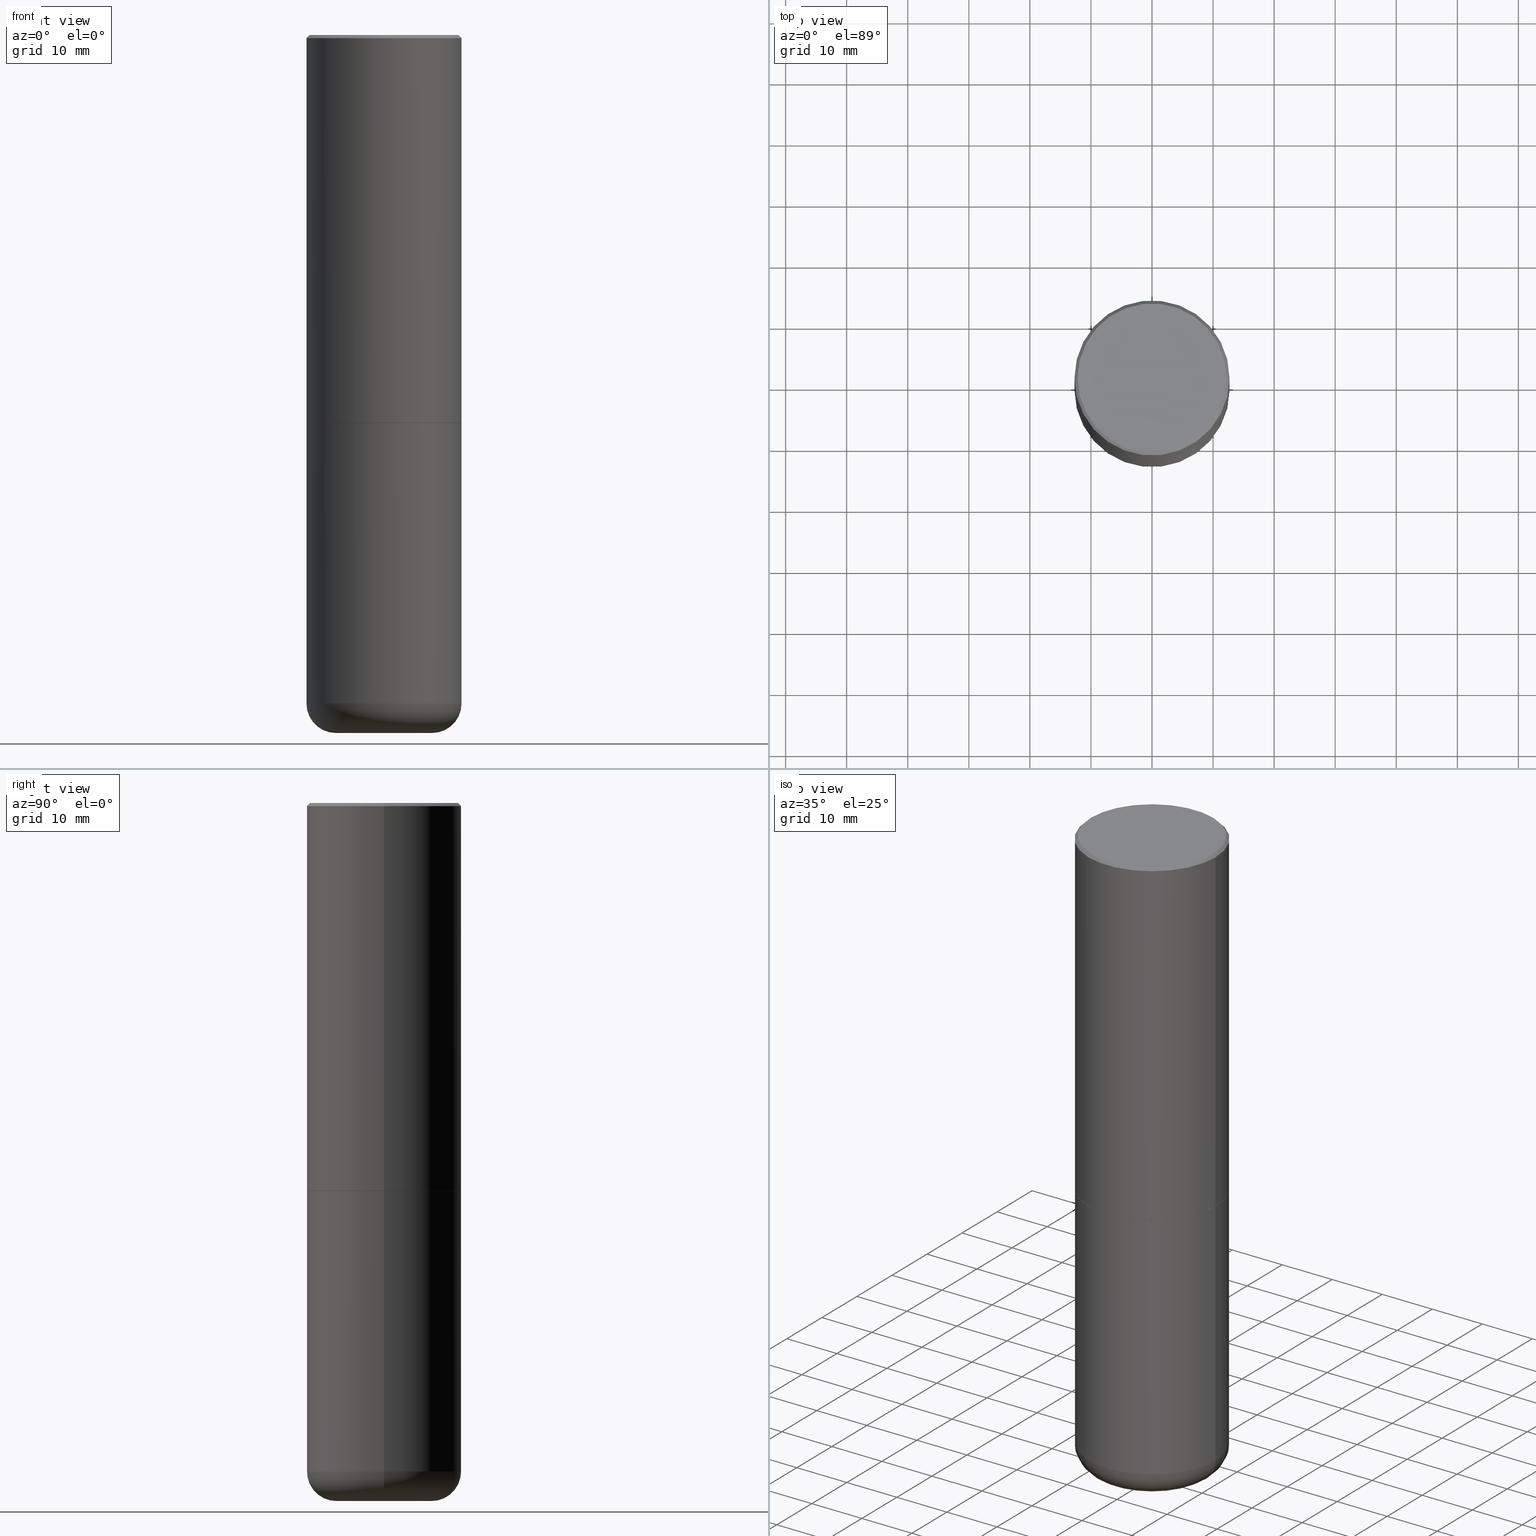
[diagram: canonical four-view strip — front | top / right | iso, engineering-drawing reading convention]
A machine part, canonical four-view strip (front | top / right | iso — engineering-drawing reading convention). The complete STEP part file that produces these views, byte-faithful:
ISO-10303-21;
HEADER;
FILE_DESCRIPTION (( 'STEP AP203' ),
    '1' );
FILE_NAME ('37149.STEP',
    '2024-03-01T21:04:27',
    ( '' ),
    ( '' ),
    'SwSTEP 2.0',
    'SolidWorks 2023',
    '' );
FILE_SCHEMA (( 'CONFIG_CONTROL_DESIGN' ));
ENDSEC;

DATA;
#1 = ORIENTED_EDGE ( 'NONE', *, *, #28, .F. ) ;
#2 = CIRCLE ( 'NONE', #234, 0.3099999999999999978 ) ;
#3 = CARTESIAN_POINT ( 'NONE',  ( -0.4989999999999999991, -5.183095095664965021E-15, -2.500000000000000000 ) ) ;
#4 = CARTESIAN_POINT ( 'NONE',  ( 0.5000000000000001110, -3.500078625662629868E-15, -0.02000000000000010797 ) ) ;
#5 = DIRECTION ( 'NONE',  ( 1.000000000000000000, -6.982962677686266711E-15, 0.000000000000000000 ) ) ;
#6 = CYLINDRICAL_SURFACE ( 'NONE', #14, 0.5000000000000000000 ) ;
#7 = CC_DESIGN_PERSON_AND_ORGANIZATION_ASSIGNMENT ( #275, #25, ( #366 ) ) ;
#8 = AXIS2_PLACEMENT_3D ( 'NONE', #254, #225, #391 ) ;
#9 = CARTESIAN_POINT ( 'NONE',  ( -0.3099999999999999978, -1.250227721777565265E-14, -4.499999999999999112 ) ) ;
#10 = AXIS2_PLACEMENT_3D ( 'NONE', #319, #246, #100 ) ;
#11 = CYLINDRICAL_SURFACE ( 'NONE', #42, 0.5000000000000001110 ) ;
#12 = PERSON ( 'UNSPECIFIED', 'UNSPECIFIED', 'UNSPECIFIED', ('UNSPECIFIED'), ('UNSPECIFIED'), ('UNSPECIFIED') ) ;
#13 = CYLINDRICAL_SURFACE ( 'NONE', #8, 0.5000000000000001110 ) ;
#14 = AXIS2_PLACEMENT_3D ( 'NONE', #359, #322, #398 ) ;
#15 = COORDINATED_UNIVERSAL_TIME_OFFSET ( 5, 0, .BEHIND. ) ;
#16 = DESIGN_CONTEXT ( 'detailed design', #202, 'design' ) ;
#17 = MANIFOLD_SOLID_BREP ( 'Body-Move/Copy2[2]', #262 ) ;
#18 = DIRECTION ( 'NONE',  ( -2.445468806185136597E-29, 3.491481338843145583E-15, 1.000000000000000000 ) ) ;
#19 = DATE_TIME_ROLE ( 'creation_date' ) ;
#20 = DIRECTION ( 'NONE',  ( -1.000000000000000000, 6.982962677686265922E-15, 0.000000000000000000 ) ) ;
#21 = DIMENSIONAL_EXPONENTS ( 1.000000000000000000, 0.000000000000000000, 0.000000000000000000, 0.000000000000000000, 0.000000000000000000, 0.000000000000000000, 0.000000000000000000 ) ;
#22 = DIRECTION ( 'NONE',  ( 2.438088387897960049E-29, -3.491481338843145188E-15, -1.000000000000000000 ) ) ;
#23 = CIRCLE ( 'NONE', #251, 0.5000000000000000000 ) ;
#24 = LOCAL_TIME ( 16, 4, 27.00000000000000000, #376 ) ;
#25 = PERSON_AND_ORGANIZATION_ROLE ( 'design_supplier' ) ;
#26 = ORIENTED_EDGE ( 'NONE', *, *, #114, .F. ) ;
#27 = CARTESIAN_POINT ( 'NONE',  ( 0.5000000000000002220, -1.221669320461215845E-14, -2.499000000000000110 ) ) ;
#28 = EDGE_CURVE ( 'NONE', #73, #344, #97, .T. ) ;
#29 = VERTEX_POINT ( 'NONE', #173 ) ;
#30 = VERTEX_POINT ( 'NONE', #333 ) ;
#31 = CALENDAR_DATE ( 2024, 1, 3 ) ;
#32 = CC_DESIGN_APPROVAL ( #60, ( #366 ) ) ;
#33 = VERTEX_POINT ( 'NONE', #299 ) ;
#34 = DATE_AND_TIME ( #384, #148 ) ;
#35 = ORIENTED_EDGE ( 'NONE', *, *, #418, .F. ) ;
#36 = CARTESIAN_POINT ( 'NONE',  ( 1.100460962783311244E-28, -1.571166602479415374E-14, -4.499999999999999112 ) ) ;
#37 = DIRECTION ( 'NONE',  ( 0.7071067811867165487, -2.468850131084027659E-15, 0.7071067811863784858 ) ) ;
#38 = DIRECTION ( 'NONE',  ( -2.445468806185136597E-29, 3.491481338843145583E-15, 1.000000000000000000 ) ) ;
#39 = ORIENTED_EDGE ( 'NONE', *, *, #271, .T. ) ;
#40 = ORIENTED_EDGE ( 'NONE', *, *, #408, .F. ) ;
#41 = LINE ( 'NONE', #3, #332 ) ;
#42 = AXIS2_PLACEMENT_3D ( 'NONE', #143, #364, #307 ) ;
#43 = AXIS2_PLACEMENT_3D ( 'NONE', #145, #232, #5 ) ;
#44 = CARTESIAN_POINT ( 'NONE',  ( 0.5000000000000001110, -3.491481338843134539E-15, 2.438088387897968457E-29 ) ) ;
#45 = FACE_OUTER_BOUND ( 'NONE', #161, .T. ) ;
#46 = CARTESIAN_POINT ( 'NONE',  ( 3.351822085289406364E-15, 0.4799999999999998157, -1.547855667941696890E-15 ) ) ;
#47 = ORIENTED_EDGE ( 'NONE', *, *, #286, .T. ) ;
#48 = CC_DESIGN_DATE_AND_TIME_ASSIGNMENT ( #340, #19, ( #181 ) ) ;
#49 = FACE_OUTER_BOUND ( 'NONE', #210, .T. ) ;
#50 = DIRECTION ( 'NONE',  ( 2.438088387897960049E-29, -3.491481338843145188E-15, -1.000000000000000000 ) ) ;
#51 = CARTESIAN_POINT ( 'NONE',  ( 4.890937612370299433E-31, -6.982962677686328587E-17, -0.02000000000000010797 ) ) ;
#52 = VECTOR ( 'NONE', #137, 39.37007874015748143 ) ;
#53 = AXIS2_PLACEMENT_3D ( 'NONE', #198, #55, #20 ) ;
#54 = DIRECTION ( 'NONE',  ( -2.445468806185136597E-29, 3.491481338843145583E-15, 1.000000000000000000 ) ) ;
#55 = DIRECTION ( 'NONE',  ( 2.445468806185136597E-29, -3.491481338843145583E-15, -1.000000000000000000 ) ) ;
#56 = EDGE_CURVE ( 'NONE', #245, #33, #329, .T. ) ;
#57 = CARTESIAN_POINT ( 'NONE',  ( 0.3099999999999999978, -1.787638445487689705E-14, -4.499999999999999112 ) ) ;
#58 = ADVANCED_FACE ( 'NONE', ( #84 ), #164, .T. ) ;
#59 = CARTESIAN_POINT ( 'NONE',  ( 6.113672015462842613E-29, -8.728703347107864943E-15, -2.500000000000000000 ) ) ;
#60 = APPROVAL ( #404, 'UNSPECIFIED' ) ;
#61 = APPROVAL_DATE_TIME ( #236, #193 ) ;
#62 = FACE_OUTER_BOUND ( 'NONE', #331, .T. ) ;
#63 = DIRECTION ( 'NONE',  ( 1.000000000000000000, -6.982962677686266711E-15, 4.878011538933552085E-29 ) ) ;
#64 = VECTOR ( 'NONE', #37, 39.37007874015748143 ) ;
#65 = CARTESIAN_POINT ( 'NONE',  ( 6.111226546656657010E-29, -8.725211865769021935E-15, -2.499000000000000110 ) ) ;
#66 = ORIENTED_EDGE ( 'NONE', *, *, #211, .F. ) ;
#67 = VERTEX_POINT ( 'NONE', #103 ) ;
#68 = EDGE_LOOP ( 'NONE', ( #175, #290, #80, #312 ) ) ;
#69 = ADVANCED_FACE ( 'NONE', ( #265 ), #13, .T. ) ;
#70 = PRODUCT_DEFINITION_SHAPE ( 'NONE', 'NONE',  #181 ) ;
#71 = AXIS2_PLACEMENT_3D ( 'NONE', #86, #167, #104 ) ;
#72 = LINE ( 'NONE', #320, #64 ) ;
#73 = VERTEX_POINT ( 'NONE', #101 ) ;
#74 = DIRECTION ( 'NONE',  ( -1.000000000000000000, 6.982962677686265922E-15, -4.876176775795935793E-29 ) ) ;
#75 = CARTESIAN_POINT ( 'NONE',  ( -0.5000000000000001110, 3.421651712066270452E-15, -0.02000000000000010797 ) ) ;
#76 = DIRECTION ( 'NONE',  ( -6.982962677686266711E-15, -1.000000000000000000, 3.491481338843145583E-15 ) ) ;
#77 = AXIS2_PLACEMENT_3D ( 'NONE', #174, #372, #63 ) ;
#78 = EDGE_CURVE ( 'NONE', #224, #67, #382, .T. ) ;
#79 = CARTESIAN_POINT ( 'NONE',  ( 1.053997055465793981E-28, -1.504828457041396030E-14, -4.310000000000000497 ) ) ;
#80 = ORIENTED_EDGE ( 'NONE', *, *, #310, .T. ) ;
#81 = DIRECTION ( 'NONE',  ( -2.445468806185136597E-29, 3.491481338843145583E-15, 1.000000000000000000 ) ) ;
#82 = DIRECTION ( 'NONE',  ( -2.445468806185136597E-29, 3.491481338843145583E-15, 1.000000000000000000 ) ) ;
#83 = DIRECTION ( 'NONE',  ( -2.445468806185136597E-29, 3.491481338843145583E-15, 1.000000000000000000 ) ) ;
#84 = FACE_OUTER_BOUND ( 'NONE', #183, .T. ) ;
#85 = CC_DESIGN_SECURITY_CLASSIFICATION ( #88, ( #366 ) ) ;
#86 = CARTESIAN_POINT ( 'NONE',  ( 0.000000000000000000, 0.000000000000000000, 0.000000000000000000 ) ) ;
#87 = CC_DESIGN_PERSON_AND_ORGANIZATION_ASSIGNMENT ( #144, #399, ( #217 ) ) ;
#88 = SECURITY_CLASSIFICATION ( '', '', #411 ) ;
#89 = EDGE_CURVE ( 'NONE', #289, #392, #209, .T. ) ;
#90 = DIRECTION ( 'NONE',  ( -2.445468806185136877E-29, 3.491481338843145188E-15, 1.000000000000000000 ) ) ;
#91 = VECTOR ( 'NONE', #263, 39.37007874015748143 ) ;
#92 = CONICAL_SURFACE ( 'NONE', #53, 0.5000000000000001110, 0.7853981633974458365 ) ;
#93 = ORIENTED_EDGE ( 'NONE', *, *, #271, .F. ) ;
#94 = PERSON_AND_ORGANIZATION ( #12, #293 ) ;
#95 = ORIENTED_EDGE ( 'NONE', *, *, #146, .F. ) ;
#96 = DIRECTION ( 'NONE',  ( 1.000000000000000000, -6.982962677686273810E-15, 0.000000000000000000 ) ) ;
#97 = CIRCLE ( 'NONE', #324, 0.5000000000000001110 ) ;
#98 =( GEOMETRIC_REPRESENTATION_CONTEXT ( 3 ) GLOBAL_UNCERTAINTY_ASSIGNED_CONTEXT ( ( #147 ) ) GLOBAL_UNIT_ASSIGNED_CONTEXT ( ( #354, #121, #361 ) ) REPRESENTATION_CONTEXT ( 'NONE', 'WORKASPACE' ) );
#99 = ORIENTED_EDGE ( 'NONE', *, *, #298, .F. ) ;
#100 = DIRECTION ( 'NONE',  ( 1.000000000000000000, -6.982962677686269077E-15, 0.000000000000000000 ) ) ;
#101 = CARTESIAN_POINT ( 'NONE',  ( 0.5000000000000001110, -3.500078625662629868E-15, -0.02000000000000010797 ) ) ;
#102 = LINE ( 'NONE', #44, #284 ) ;
#103 = CARTESIAN_POINT ( 'NONE',  ( -0.4999999999999998335, -1.149557089161345937E-14, -4.310000000000000497 ) ) ;
#104 = DIRECTION ( 'NONE',  ( 1.000000000000000000, 0.000000000000000000, 0.000000000000000000 ) ) ;
#105 = ADVANCED_FACE ( 'NONE', ( #109 ), #269, .T. ) ;
#106 = DIRECTION ( 'NONE',  ( 1.000000000000000000, -6.982962677686266711E-15, 4.876176775795935793E-29 ) ) ;
#107 = ORIENTED_EDGE ( 'NONE', *, *, #330, .F. ) ;
#108 = DIRECTION ( 'NONE',  ( -2.438088387897960049E-29, 3.491481338843145188E-15, 1.000000000000000000 ) ) ;
#109 = FACE_OUTER_BOUND ( 'NONE', #306, .T. ) ;
#110 = CARTESIAN_POINT ( 'NONE',  ( 0.4799999999999998157, -3.396558832296481310E-15, 2.561107494060482809E-16 ) ) ;
#111 = ADVANCED_FACE ( 'NONE', ( #45 ), #6, .T. ) ;
#112 = ORIENTED_EDGE ( 'NONE', *, *, #403, .F. ) ;
#113 = VECTOR ( 'NONE', #266, 39.37007874015748143 ) ;
#114 = EDGE_CURVE ( 'NONE', #387, #289, #41, .T. ) ;
#115 = APPROVAL_ROLE ( '' ) ;
#116 = FACE_OUTER_BOUND ( 'NONE', #371, .T. ) ;
#117 = AXIS2_PLACEMENT_3D ( 'NONE', #46, #50, #296 ) ;
#118 = EDGE_CURVE ( 'NONE', #311, #73, #166, .T. ) ;
#119 = LINE ( 'NONE', #342, #325 ) ;
#120 = CIRCLE ( 'NONE', #141, 0.5000000000000000000 ) ;
#121 =( NAMED_UNIT ( * ) PLANE_ANGLE_UNIT ( ) SI_UNIT ( $, .RADIAN. ) );
#122 = CARTESIAN_POINT ( 'NONE',  ( 4.890937612370299433E-31, -6.982962677686328587E-17, -0.02000000000000010797 ) ) ;
#123 = ORIENTED_EDGE ( 'NONE', *, *, #114, .T. ) ;
#124 = CARTESIAN_POINT ( 'NONE',  ( -0.5000000000000001110, 3.552713678800501718E-15, -2.459467545127453732E-29 ) ) ;
#125 = ORIENTED_EDGE ( 'NONE', *, *, #418, .T. ) ;
#126 = DATE_AND_TIME ( #31, #165 ) ;
#127 = ORIENTED_EDGE ( 'NONE', *, *, #412, .F. ) ;
#128 = ORIENTED_EDGE ( 'NONE', *, *, #56, .T. ) ;
#129 = DIRECTION ( 'NONE',  ( 1.000000000000000000, -6.982962677686263555E-15, 0.000000000000000000 ) ) ;
#130 = DIRECTION ( 'NONE',  ( -2.445468806185136877E-29, 3.491481338843145188E-15, 1.000000000000000000 ) ) ;
#131 = AXIS2_PLACEMENT_3D ( 'NONE', #268, #368, #377 ) ;
#132 = CIRCLE ( 'NONE', #235, 0.4989999999999999991 ) ;
#133 = ORIENTED_EDGE ( 'NONE', *, *, #78, .F. ) ;
#134 = EDGE_LOOP ( 'NONE', ( #358, #222 ) ) ;
#135 = ADVANCED_FACE ( 'NONE', ( #260 ), #393, .F. ) ;
#136 = VERTEX_POINT ( 'NONE', #231 ) ;
#137 = DIRECTION ( 'NONE',  ( 0.7071067811865457964, -7.319954787623249734E-15, -0.7071067811865492381 ) ) ;
#138 = FACE_OUTER_BOUND ( 'NONE', #345, .T. ) ;
#139 = CARTESIAN_POINT ( 'NONE',  ( 4.890937612370299433E-31, -6.982962677686328587E-17, -0.02000000000000010797 ) ) ;
#140 = DIRECTION ( 'NONE',  ( 1.000000000000000000, -6.982962677686265922E-15, 0.000000000000000000 ) ) ;
#141 = AXIS2_PLACEMENT_3D ( 'NONE', #79, #82, #292 ) ;
#142 = LINE ( 'NONE', #397, #113 ) ;
#143 = CARTESIAN_POINT ( 'NONE',  ( 0.000000000000000000, 0.000000000000000000, 0.000000000000000000 ) ) ;
#144 = PERSON_AND_ORGANIZATION ( #12, #293 ) ;
#145 = CARTESIAN_POINT ( 'NONE',  ( 6.113672015462842613E-29, -8.728703347107864943E-15, -2.500000000000000000 ) ) ;
#146 = EDGE_CURVE ( 'NONE', #245, #67, #395, .T. ) ;
#147 = UNCERTAINTY_MEASURE_WITH_UNIT (LENGTH_MEASURE( 1.000000000000000082E-05 ), #354, 'distance_accuracy_value', 'NONE');
#148 = LOCAL_TIME ( 16, 4, 27.00000000000000000, #243 ) ;
#149 = FACE_OUTER_BOUND ( 'NONE', #249, .T. ) ;
#150 = DIRECTION ( 'NONE',  ( -1.000000000000000000, 6.982962677686265922E-15, -4.876176775795935793E-29 ) ) ;
#151 = AXIS2_PLACEMENT_3D ( 'NONE', #169, #108, #362 ) ;
#152 = AXIS2_PLACEMENT_3D ( 'NONE', #36, #212, #129 ) ;
#153 = CALENDAR_DATE ( 2024, 1, 3 ) ;
#154 = PERSON_AND_ORGANIZATION_ROLE ( 'creator' ) ;
#155 = ORIENTED_EDGE ( 'NONE', *, *, #56, .F. ) ;
#156 = CIRCLE ( 'NONE', #10, 0.5000000000000000000 ) ;
#157 = ADVANCED_FACE ( 'NONE', ( #194 ), #218, .T. ) ;
#158 = ORIENTED_EDGE ( 'NONE', *, *, #146, .T. ) ;
#159 = DATE_TIME_ROLE ( 'classification_date' ) ;
#160 = ORIENTED_EDGE ( 'NONE', *, *, #286, .F. ) ;
#161 = EDGE_LOOP ( 'NONE', ( #158, #297, #66, #155 ) ) ;
#162 = ADVANCED_FACE ( 'NONE', ( #49 ), #11, .T. ) ;
#163 = AXIS2_PLACEMENT_3D ( 'NONE', #230, #38, #274 ) ;
#164 = PLANE ( 'NONE',  #339 ) ;
#165 = LOCAL_TIME ( 16, 4, 27.00000000000000000, #182 ) ;
#166 = LINE ( 'NONE', #4, #52 ) ;
#167 = DIRECTION ( 'NONE',  ( 0.000000000000000000, 0.000000000000000000, 1.000000000000000000 ) ) ;
#168 = DIRECTION ( 'NONE',  ( -2.445468806185136877E-29, 3.491481338843145188E-15, 1.000000000000000000 ) ) ;
#169 = CARTESIAN_POINT ( 'NONE',  ( 6.113672015462842613E-29, -8.728703347107864943E-15, -2.500000000000000000 ) ) ;
#170 = DIRECTION ( 'NONE',  ( 2.445468806185136597E-29, -3.491481338843145583E-15, -1.000000000000000000 ) ) ;
#171 = AXIS2_PLACEMENT_3D ( 'NONE', #326, #83, #188 ) ;
#172 = ORIENTED_EDGE ( 'NONE', *, *, #118, .T. ) ;
#173 = CARTESIAN_POINT ( 'NONE',  ( -0.5000000000000000000, -8.335780279960410113E-15, -2.500000000000000000 ) ) ;
#174 = CARTESIAN_POINT ( 'NONE',  ( -6.263108486011318684E-45, 8.942059022282684186E-31, 2.561107494060246644E-16 ) ) ;
#175 = ORIENTED_EDGE ( 'NONE', *, *, #118, .F. ) ;
#176 = APPROVAL_STATUS ( 'not_yet_approved' ) ;
#177 = CIRCLE ( 'NONE', #413, 0.5000000000000001110 ) ;
#178 = VECTOR ( 'NONE', #130, 39.37007874015748143 ) ;
#179 = CIRCLE ( 'NONE', #348, 0.1899999999999996692 ) ;
#180 = ORIENTED_EDGE ( 'NONE', *, *, #211, .T. ) ;
#181 = PRODUCT_DEFINITION ( 'UNKNOWN', '', #366, #16 ) ;
#182 = COORDINATED_UNIVERSAL_TIME_OFFSET ( 5, 0, .BEHIND. ) ;
#183 = EDGE_LOOP ( 'NONE', ( #127, #216 ) ) ;
#184 = AXIS2_PLACEMENT_3D ( 'NONE', #323, #288, #106 ) ;
#185 = APPROVAL_PERSON_ORGANIZATION ( #270, #60, #115 ) ;
#186 = ORIENTED_EDGE ( 'NONE', *, *, #233, .T. ) ;
#187 = EDGE_LOOP ( 'NONE', ( #219, #35 ) ) ;
#188 = DIRECTION ( 'NONE',  ( 1.000000000000000000, -6.982962677686267499E-15, 4.883557194083114022E-29 ) ) ;
#189 = DIRECTION ( 'NONE',  ( -0.7071067811867165487, 7.493145998870964739E-15, 0.7071067811863784858 ) ) ;
#190 = TOROIDAL_SURFACE ( 'NONE', #309, 0.3099999999999999978, 0.1899999999999996692 ) ;
#191 = FACE_OUTER_BOUND ( 'NONE', #134, .T. ) ;
#192 = DIRECTION ( 'NONE',  ( 1.000000000000000000, -6.982962677686265922E-15, 0.000000000000000000 ) ) ;
#193 = APPROVAL ( #176, 'UNSPECIFIED' ) ;
#194 = FACE_OUTER_BOUND ( 'NONE', #68, .T. ) ;
#195 = FACE_OUTER_BOUND ( 'NONE', #414, .T. ) ;
#196 = ORIENTED_EDGE ( 'NONE', *, *, #338, .F. ) ;
#197 = AXIS2_PLACEMENT_3D ( 'NONE', #59, #18, #237 ) ;
#198 = CARTESIAN_POINT ( 'NONE',  ( 4.890937612370299433E-31, -6.982962677686328587E-17, -0.02000000000000010797 ) ) ;
#199 = LOCAL_TIME ( 16, 4, 27.00000000000000000, #203 ) ;
#200 = DIRECTION ( 'NONE',  ( -2.445468806185136597E-29, 3.491481338843145583E-15, 1.000000000000000000 ) ) ;
#201 = CARTESIAN_POINT ( 'NONE',  ( -0.4989999999999999991, -5.177796641316741831E-15, -2.500000000000000000 ) ) ;
#202 = APPLICATION_CONTEXT ( 'configuration controlled 3d designs of mechanical parts and assemblies' ) ;
#203 = COORDINATED_UNIVERSAL_TIME_OFFSET ( 5, 0, .BEHIND. ) ;
#204 = LOCAL_TIME ( 16, 4, 27.00000000000000000, #15 ) ;
#205 = CARTESIAN_POINT ( 'NONE',  ( 1.053997055465793981E-28, -1.504828457041396030E-14, -4.310000000000000497 ) ) ;
#206 = CALENDAR_DATE ( 2024, 1, 3 ) ;
#207 = ADVANCED_FACE ( 'NONE', ( #149 ), #373, .T. ) ;
#208 = PERSON_AND_ORGANIZATION ( #12, #293 ) ;
#209 = CIRCLE ( 'NONE', #347, 0.5000000000000002220 ) ;
#210 = EDGE_LOOP ( 'NONE', ( #276, #314, #47, #196 ) ) ;
#211 = EDGE_CURVE ( 'NONE', #33, #29, #23, .T. ) ;
#212 = DIRECTION ( 'NONE',  ( -2.445468806185136597E-29, 3.491481338843145583E-15, 1.000000000000000000 ) ) ;
#213 = APPROVAL_ROLE ( '' ) ;
#214 = CARTESIAN_POINT ( 'NONE',  ( 0.3099999999999999978, -1.721300300049670045E-14, -4.310000000000000497 ) ) ;
#215 = EDGE_CURVE ( 'NONE', #30, #311, #308, .T. ) ;
#216 = ORIENTED_EDGE ( 'NONE', *, *, #267, .F. ) ;
#217 = PRODUCT ( '37149', '37149', '', ( #295 ) ) ;
#218 = CONICAL_SURFACE ( 'NONE', #242, 0.5000000000000001110, 0.7853981633974458365 ) ;
#219 = ORIENTED_EDGE ( 'NONE', *, *, #233, .F. ) ;
#220 =( LENGTH_UNIT ( ) NAMED_UNIT ( * ) SI_UNIT ( $, .METRE. ) );
#221 = DIRECTION ( 'NONE',  ( -1.000000000000000000, 7.105427357600999492E-15, 0.000000000000000000 ) ) ;
#222 = ORIENTED_EDGE ( 'NONE', *, *, #330, .T. ) ;
#223 = CARTESIAN_POINT ( 'NONE',  ( 6.113672015462842613E-29, -8.728703347107864943E-15, -2.500000000000000000 ) ) ;
#224 = VERTEX_POINT ( 'NONE', #9 ) ;
#225 = DIRECTION ( 'NONE',  ( -2.445468806185136597E-29, 3.491481338843145583E-15, 1.000000000000000000 ) ) ;
#226 = CARTESIAN_POINT ( 'NONE',  ( 1.053997055465793981E-28, -1.504828457041396030E-14, -4.310000000000000497 ) ) ;
#227 = CC_DESIGN_APPROVAL ( #239, ( #88 ) ) ;
#228 = CC_DESIGN_PERSON_AND_ORGANIZATION_ASSIGNMENT ( #208, #154, ( #366 ) ) ;
#229 = DIRECTION ( 'NONE',  ( -2.445468806185136597E-29, 3.491481338843145583E-15, 1.000000000000000000 ) ) ;
#230 = CARTESIAN_POINT ( 'NONE',  ( -6.263108486011318684E-45, 8.942059022282684186E-31, 2.561107494060246644E-16 ) ) ;
#231 = CARTESIAN_POINT ( 'NONE',  ( 0.4989999999999999991, -1.221320172327331228E-14, -2.500000000000000000 ) ) ;
#232 = DIRECTION ( 'NONE',  ( -2.445468806185136597E-29, 3.491481338843145583E-15, 1.000000000000000000 ) ) ;
#233 = EDGE_CURVE ( 'NONE', #136, #387, #301, .T. ) ;
#234 = AXIS2_PLACEMENT_3D ( 'NONE', #247, #349, #252 ) ;
#235 = AXIS2_PLACEMENT_3D ( 'NONE', #223, #417, #250 ) ;
#236 = DATE_AND_TIME ( #153, #199 ) ;
#237 = DIRECTION ( 'NONE',  ( 1.000000000000000000, -6.982962677686266711E-15, 0.000000000000000000 ) ) ;
#238 = CIRCLE ( 'NONE', #152, 0.3099999999999999978 ) ;
#239 = APPROVAL ( #350, 'UNSPECIFIED' ) ;
#240 = ADVANCED_FACE ( 'NONE', ( #62 ), #272, .F. ) ;
#241 = DIRECTION ( 'NONE',  ( -2.445468806185136597E-29, 3.491481338843145583E-15, 1.000000000000000000 ) ) ;
#242 = AXIS2_PLACEMENT_3D ( 'NONE', #51, #170, #294 ) ;
#243 = COORDINATED_UNIVERSAL_TIME_OFFSET ( 5, 0, .BEHIND. ) ;
#244 = VERTEX_POINT ( 'NONE', #57 ) ;
#245 = VERTEX_POINT ( 'NONE', #282 ) ;
#246 = DIRECTION ( 'NONE',  ( -2.445468806185136597E-29, 3.491481338843145583E-15, 1.000000000000000000 ) ) ;
#247 = CARTESIAN_POINT ( 'NONE',  ( 1.100460962783311244E-28, -1.571166602479415374E-14, -4.499999999999999112 ) ) ;
#248 = APPROVAL_DATE_TIME ( #126, #239 ) ;
#249 = EDGE_LOOP ( 'NONE', ( #186, #123, #112, #93 ) ) ;
#250 = DIRECTION ( 'NONE',  ( 1.000000000000000000, -6.982962677686266711E-15, 0.000000000000000000 ) ) ;
#251 = AXIS2_PLACEMENT_3D ( 'NONE', #374, #200, #336 ) ;
#252 = DIRECTION ( 'NONE',  ( 1.000000000000000000, -6.982962677686263555E-15, 0.000000000000000000 ) ) ;
#253 = APPROVAL_PERSON_ORGANIZATION ( #94, #239, #213 ) ;
#254 = CARTESIAN_POINT ( 'NONE',  ( 0.000000000000000000, 0.000000000000000000, 0.000000000000000000 ) ) ;
#255 = ORIENTED_EDGE ( 'NONE', *, *, #408, .T. ) ;
#256 = LENGTH_MEASURE_WITH_UNIT ( LENGTH_MEASURE( 0.02539999999999999897 ), #220 );
#257 = EDGE_LOOP ( 'NONE', ( #321, #313, #128, #318 ) ) ;
#258 = DIRECTION ( 'NONE',  ( 1.000000000000000000, -6.982962677686269866E-15, 0.000000000000000000 ) ) ;
#259 = FACE_OUTER_BOUND ( 'NONE', #257, .T. ) ;
#260 = FACE_OUTER_BOUND ( 'NONE', #187, .T. ) ;
#261 = EDGE_CURVE ( 'NONE', #289, #344, #415, .T. ) ;
#262 = CLOSED_SHELL ( 'NONE', ( #207, #69, #386, #157, #162, #378, #135, #370 ) ) ;
#263 = DIRECTION ( 'NONE',  ( -2.445468806185136877E-29, 3.491481338843145188E-15, 1.000000000000000000 ) ) ;
#264 = CIRCLE ( 'NONE', #273, 0.5000000000000002220 ) ;
#265 = FACE_OUTER_BOUND ( 'NONE', #416, .T. ) ;
#266 = DIRECTION ( 'NONE',  ( -0.7071067811865457964, 2.468850131082238917E-15, -0.7071067811865492381 ) ) ;
#267 = EDGE_CURVE ( 'NONE', #224, #244, #2, .T. ) ;
#268 = CARTESIAN_POINT ( 'NONE',  ( 6.113672015462842613E-29, -8.728703347107864943E-15, -2.500000000000000000 ) ) ;
#269 = TOROIDAL_SURFACE ( 'NONE', #171, 0.3099999999999999978, 0.1899999999999996692 ) ;
#270 = PERSON_AND_ORGANIZATION ( #12, #293 ) ;
#271 = EDGE_CURVE ( 'NONE', #136, #392, #72, .T. ) ;
#272 = PLANE ( 'NONE',  #365 ) ;
#273 = AXIS2_PLACEMENT_3D ( 'NONE', #65, #241, #383 ) ;
#274 = DIRECTION ( 'NONE',  ( 1.000000000000000000, -6.982962677686266711E-15, 4.878011538933552085E-29 ) ) ;
#275 = PERSON_AND_ORGANIZATION ( #12, #293 ) ;
#276 = ORIENTED_EDGE ( 'NONE', *, *, #261, .F. ) ;
#277 = ORIENTED_EDGE ( 'NONE', *, *, #267, .T. ) ;
#278 = APPROVAL_PERSON_ORGANIZATION ( #409, #193, #300 ) ;
#279 = ORIENTED_EDGE ( 'NONE', *, *, #412, .T. ) ;
#280 = MANIFOLD_SOLID_BREP ( 'Body-Move/Copy2[1]', #315 ) ;
#281 = PRODUCT_RELATED_PRODUCT_CATEGORY ( 'detail', '', ( #217 ) ) ;
#282 = CARTESIAN_POINT ( 'NONE',  ( 0.4999999999999998335, -1.853976590925709365E-14, -4.310000000000000497 ) ) ;
#283 = ORIENTED_EDGE ( 'NONE', *, *, #403, .T. ) ;
#284 = VECTOR ( 'NONE', #168, 39.37007874015748143 ) ;
#285 = DIRECTION ( 'NONE',  ( 2.438088387897960049E-29, -3.491481338843145188E-15, -1.000000000000000000 ) ) ;
#286 = EDGE_CURVE ( 'NONE', #392, #73, #102, .T. ) ;
#287 = CARTESIAN_POINT ( 'NONE',  ( -0.3099999999999999978, -1.284560208955764776E-14, -4.310000000000000497 ) ) ;
#288 = DIRECTION ( 'NONE',  ( -2.445468806185136597E-29, 3.491481338843145583E-15, 1.000000000000000000 ) ) ;
#289 = VERTEX_POINT ( 'NONE', #357 ) ;
#290 = ORIENTED_EDGE ( 'NONE', *, *, #215, .F. ) ;
#291 = CARTESIAN_POINT ( 'NONE',  ( 0.5000000000000000000, -3.491481338843133355E-15, 2.438088387897967896E-29 ) ) ;
#292 = DIRECTION ( 'NONE',  ( 1.000000000000000000, -6.982962677686270655E-15, 0.000000000000000000 ) ) ;
#293 = ORGANIZATION ( 'UNSPECIFIED', 'UNSPECIFIED', '' ) ;
#294 = DIRECTION ( 'NONE',  ( -1.000000000000000000, 6.982962677686265922E-15, 0.000000000000000000 ) ) ;
#295 = MECHANICAL_CONTEXT ( 'NONE', #337, 'mechanical' ) ;
#296 = DIRECTION ( 'NONE',  ( -1.000000000000000000, 6.982962677686265922E-15, -4.876176775795935793E-29 ) ) ;
#297 = ORIENTED_EDGE ( 'NONE', *, *, #400, .T. ) ;
#298 = EDGE_CURVE ( 'NONE', #67, #245, #120, .T. ) ;
#299 = CARTESIAN_POINT ( 'NONE',  ( 0.5000000000000000000, -1.222018468595099830E-14, -2.500000000000000000 ) ) ;
#300 = APPROVAL_ROLE ( '' ) ;
#301 = CIRCLE ( 'NONE', #131, 0.4989999999999999991 ) ;
#302 = PERSON_AND_ORGANIZATION_ROLE ( 'creator' ) ;
#303 = CC_DESIGN_APPROVAL ( #193, ( #181 ) ) ;
#304 = ORIENTED_EDGE ( 'NONE', *, *, #261, .T. ) ;
#305 = DATE_AND_TIME ( #206, #24 ) ;
#306 = EDGE_LOOP ( 'NONE', ( #279, #389, #95, #40 ) ) ;
#307 = DIRECTION ( 'NONE',  ( 1.000000000000000000, -6.982962677686267499E-15, 4.876176775795935793E-29 ) ) ;
#308 = CIRCLE ( 'NONE', #77, 0.4799999999999998157 ) ;
#309 = AXIS2_PLACEMENT_3D ( 'NONE', #205, #341, #410 ) ;
#310 = EDGE_CURVE ( 'NONE', #30, #344, #142, .T. ) ;
#311 = VERTEX_POINT ( 'NONE', #110 ) ;
#312 = ORIENTED_EDGE ( 'NONE', *, *, #338, .T. ) ;
#313 = ORIENTED_EDGE ( 'NONE', *, *, #298, .T. ) ;
#314 = ORIENTED_EDGE ( 'NONE', *, *, #89, .T. ) ;
#315 = CLOSED_SHELL ( 'NONE', ( #111, #105, #240, #353, #390, #58 ) ) ;
#316 = PERSON_AND_ORGANIZATION ( #12, #293 ) ;
#317 = CC_DESIGN_DATE_AND_TIME_ASSIGNMENT ( #34, #159, ( #88 ) ) ;
#318 = ORIENTED_EDGE ( 'NONE', *, *, #405, .F. ) ;
#319 = CARTESIAN_POINT ( 'NONE',  ( 6.113672015462842613E-29, -8.728703347107864943E-15, -2.500000000000000000 ) ) ;
#320 = CARTESIAN_POINT ( 'NONE',  ( 0.4989999999999999991, -1.221320172327331228E-14, -2.500000000000000000 ) ) ;
#321 = ORIENTED_EDGE ( 'NONE', *, *, #400, .F. ) ;
#322 = DIRECTION ( 'NONE',  ( -2.445468806185136597E-29, 3.491481338843145583E-15, 1.000000000000000000 ) ) ;
#323 = CARTESIAN_POINT ( 'NONE',  ( 0.000000000000000000, 0.000000000000000000, 0.000000000000000000 ) ) ;
#324 = AXIS2_PLACEMENT_3D ( 'NONE', #139, #54, #192 ) ;
#325 = VECTOR ( 'NONE', #90, 39.37007874015748143 ) ;
#326 = CARTESIAN_POINT ( 'NONE',  ( 1.053997055465793981E-28, -1.504828457041396030E-14, -4.310000000000000497 ) ) ;
#327 = PLANE ( 'NONE',  #117 ) ;
#328 = DIRECTION ( 'NONE',  ( 1.000000000000000000, -6.982962677686270655E-15, 0.000000000000000000 ) ) ;
#329 = LINE ( 'NONE', #291, #91 ) ;
#330 = EDGE_CURVE ( 'NONE', #311, #30, #343, .T. ) ;
#331 = EDGE_LOOP ( 'NONE', ( #180, #335 ) ) ;
#332 = VECTOR ( 'NONE', #189, 39.37007874015748143 ) ;
#333 = CARTESIAN_POINT ( 'NONE',  ( -0.4799999999999998157, 3.386736898677839197E-15, 2.561107494060010972E-16 ) ) ;
#334 = ADVANCED_BREP_SHAPE_REPRESENTATION ( '37149', ( #280, #17, #71 ), #98 ) ;
#335 = ORIENTED_EDGE ( 'NONE', *, *, #405, .T. ) ;
#336 = DIRECTION ( 'NONE',  ( 1.000000000000000000, -6.982962677686269077E-15, 0.000000000000000000 ) ) ;
#337 = APPLICATION_CONTEXT ( 'configuration controlled 3d designs of mechanical parts and assemblies' ) ;
#338 = EDGE_CURVE ( 'NONE', #344, #73, #177, .T. ) ;
#339 = AXIS2_PLACEMENT_3D ( 'NONE', #352, #285, #74 ) ;
#340 = DATE_AND_TIME ( #407, #204 ) ;
#341 = DIRECTION ( 'NONE',  ( -2.445468806185136597E-29, 3.491481338843145583E-15, 1.000000000000000000 ) ) ;
#342 = CARTESIAN_POINT ( 'NONE',  ( -0.5000000000000000000, 3.552713678800500929E-15, -2.459467545127452891E-29 ) ) ;
#343 = CIRCLE ( 'NONE', #163, 0.4799999999999998157 ) ;
#344 = VERTEX_POINT ( 'NONE', #75 ) ;
#345 = EDGE_LOOP ( 'NONE', ( #107, #172, #355, #385 ) ) ;
#346 = CC_DESIGN_PERSON_AND_ORGANIZATION_ASSIGNMENT ( #316, #381, ( #88 ) ) ;
#347 = AXIS2_PLACEMENT_3D ( 'NONE', #356, #229, #258 ) ;
#348 = AXIS2_PLACEMENT_3D ( 'NONE', #214, #76, #96 ) ;
#349 = DIRECTION ( 'NONE',  ( -2.445468806185136597E-29, 3.491481338843145583E-15, 1.000000000000000000 ) ) ;
#350 = APPROVAL_STATUS ( 'not_yet_approved' ) ;
#351 = ORIENTED_EDGE ( 'NONE', *, *, #89, .F. ) ;
#352 = CARTESIAN_POINT ( 'NONE',  ( 1.654291715131140011E-28, -7.780494430284999994E-15, -4.499999999999999112 ) ) ;
#353 = ADVANCED_FACE ( 'NONE', ( #259 ), #394, .T. ) ;
#354 =( CONVERSION_BASED_UNIT ( 'INCH', #256 ) LENGTH_UNIT ( ) NAMED_UNIT ( #21 ) );
#355 = ORIENTED_EDGE ( 'NONE', *, *, #28, .T. ) ;
#356 = CARTESIAN_POINT ( 'NONE',  ( 6.111226546656657010E-29, -8.725211865769021935E-15, -2.499000000000000110 ) ) ;
#357 = CARTESIAN_POINT ( 'NONE',  ( -0.5000000000000002220, -8.448070674724393209E-16, -2.499000000000000110 ) ) ;
#358 = ORIENTED_EDGE ( 'NONE', *, *, #215, .T. ) ;
#359 = CARTESIAN_POINT ( 'NONE',  ( 0.000000000000000000, 0.000000000000000000, 0.000000000000000000 ) ) ;
#360 = DIRECTION ( 'NONE',  ( -2.445468806185136597E-29, 3.491481338843145583E-15, 1.000000000000000000 ) ) ;
#361 =( NAMED_UNIT ( * ) SI_UNIT ( $, .STERADIAN. ) SOLID_ANGLE_UNIT ( ) );
#362 = DIRECTION ( 'NONE',  ( 1.000000000000000000, -6.982962677686265922E-15, 4.876176775795935793E-29 ) ) ;
#363 = CC_DESIGN_PERSON_AND_ORGANIZATION_ASSIGNMENT ( #367, #302, ( #181 ) ) ;
#364 = DIRECTION ( 'NONE',  ( -2.445468806185136597E-29, 3.491481338843145583E-15, 1.000000000000000000 ) ) ;
#365 = AXIS2_PLACEMENT_3D ( 'NONE', #401, #22, #150 ) ;
#366 = PRODUCT_DEFINITION_FORMATION_WITH_SPECIFIED_SOURCE ( 'ANY', '', #217, .NOT_KNOWN. ) ;
#367 = PERSON_AND_ORGANIZATION ( #12, #293 ) ;
#368 = DIRECTION ( 'NONE',  ( -2.445468806185136597E-29, 3.491481338843145583E-15, 1.000000000000000000 ) ) ;
#369 = APPLICATION_PROTOCOL_DEFINITION ( 'international standard', 'config_control_design', 1994, #337 ) ;
#370 = ADVANCED_FACE ( 'NONE', ( #191 ), #327, .F. ) ;
#371 = EDGE_LOOP ( 'NONE', ( #133, #277, #255, #99 ) ) ;
#372 = DIRECTION ( 'NONE',  ( -2.445468806185136597E-29, 3.491481338843145583E-15, 1.000000000000000000 ) ) ;
#373 = CONICAL_SURFACE ( 'NONE', #197, 0.4989999999999999991, 0.7853981633976873100 ) ;
#374 = CARTESIAN_POINT ( 'NONE',  ( 6.113672015462842613E-29, -8.728703347107864943E-15, -2.500000000000000000 ) ) ;
#375 = CONICAL_SURFACE ( 'NONE', #43, 0.4989999999999999991, 0.7853981633976873100 ) ;
#376 = COORDINATED_UNIVERSAL_TIME_OFFSET ( 5, 0, .BEHIND. ) ;
#377 = DIRECTION ( 'NONE',  ( 1.000000000000000000, -6.982962677686266711E-15, 0.000000000000000000 ) ) ;
#378 = ADVANCED_FACE ( 'NONE', ( #195 ), #375, .T. ) ;
#379 = APPROVAL_DATE_TIME ( #305, #60 ) ;
#380 = APPLICATION_PROTOCOL_DEFINITION ( 'international standard', 'config_control_design', 1994, #202 ) ;
#381 = PERSON_AND_ORGANIZATION_ROLE ( 'classification_officer' ) ;
#382 = CIRCLE ( 'NONE', #402, 0.1899999999999996692 ) ;
#383 = DIRECTION ( 'NONE',  ( 1.000000000000000000, -6.982962677686269866E-15, 0.000000000000000000 ) ) ;
#384 = CALENDAR_DATE ( 2024, 1, 3 ) ;
#385 = ORIENTED_EDGE ( 'NONE', *, *, #310, .F. ) ;
#386 = ADVANCED_FACE ( 'NONE', ( #138 ), #92, .T. ) ;
#387 = VERTEX_POINT ( 'NONE', #201 ) ;
#388 = SHAPE_DEFINITION_REPRESENTATION ( #70, #334 ) ;
#389 = ORIENTED_EDGE ( 'NONE', *, *, #78, .T. ) ;
#390 = ADVANCED_FACE ( 'NONE', ( #116 ), #190, .T. ) ;
#391 = DIRECTION ( 'NONE',  ( 1.000000000000000000, -6.982962677686267499E-15, 4.876176775795935793E-29 ) ) ;
#392 = VERTEX_POINT ( 'NONE', #27 ) ;
#393 = PLANE ( 'NONE',  #151 ) ;
#394 = CYLINDRICAL_SURFACE ( 'NONE', #184, 0.5000000000000000000 ) ;
#395 = CIRCLE ( 'NONE', #406, 0.5000000000000000000 ) ;
#396 = DIRECTION ( 'NONE',  ( 7.105427357601001859E-15, 1.000000000000000000, -3.491481338843145583E-15 ) ) ;
#397 = CARTESIAN_POINT ( 'NONE',  ( -0.5000000000000001110, 3.421651712066270452E-15, -0.02000000000000010797 ) ) ;
#398 = DIRECTION ( 'NONE',  ( 1.000000000000000000, -6.982962677686266711E-15, 4.876176775795935793E-29 ) ) ;
#399 = PERSON_AND_ORGANIZATION_ROLE ( 'design_owner' ) ;
#400 = EDGE_CURVE ( 'NONE', #67, #29, #119, .T. ) ;
#401 = CARTESIAN_POINT ( 'NONE',  ( 6.113672015462842613E-29, -8.728703347107864943E-15, -2.500000000000000000 ) ) ;
#402 = AXIS2_PLACEMENT_3D ( 'NONE', #287, #396, #221 ) ;
#403 = EDGE_CURVE ( 'NONE', #392, #289, #264, .T. ) ;
#404 = APPROVAL_STATUS ( 'not_yet_approved' ) ;
#405 = EDGE_CURVE ( 'NONE', #29, #33, #156, .T. ) ;
#406 = AXIS2_PLACEMENT_3D ( 'NONE', #226, #81, #328 ) ;
#407 = CALENDAR_DATE ( 2024, 1, 3 ) ;
#408 = EDGE_CURVE ( 'NONE', #244, #245, #179, .T. ) ;
#409 = PERSON_AND_ORGANIZATION ( #12, #293 ) ;
#410 = DIRECTION ( 'NONE',  ( 1.000000000000000000, -6.982962677686267499E-15, 4.883557194083114022E-29 ) ) ;
#411 = SECURITY_CLASSIFICATION_LEVEL ( 'unclassified' ) ;
#412 = EDGE_CURVE ( 'NONE', #244, #224, #238, .T. ) ;
#413 = AXIS2_PLACEMENT_3D ( 'NONE', #122, #360, #140 ) ;
#414 = EDGE_LOOP ( 'NONE', ( #26, #125, #39, #351 ) ) ;
#415 = LINE ( 'NONE', #124, #178 ) ;
#416 = EDGE_LOOP ( 'NONE', ( #283, #304, #1, #160 ) ) ;
#417 = DIRECTION ( 'NONE',  ( -2.445468806185136597E-29, 3.491481338843145583E-15, 1.000000000000000000 ) ) ;
#418 = EDGE_CURVE ( 'NONE', #387, #136, #132, .T. ) ;
ENDSEC;
END-ISO-10303-21;
